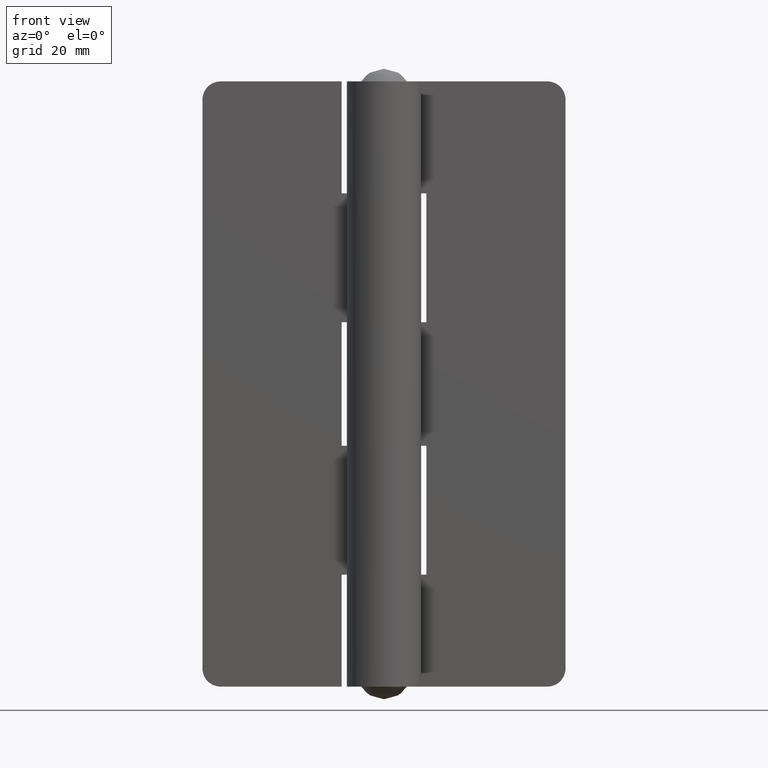
[diagram: clean part render]
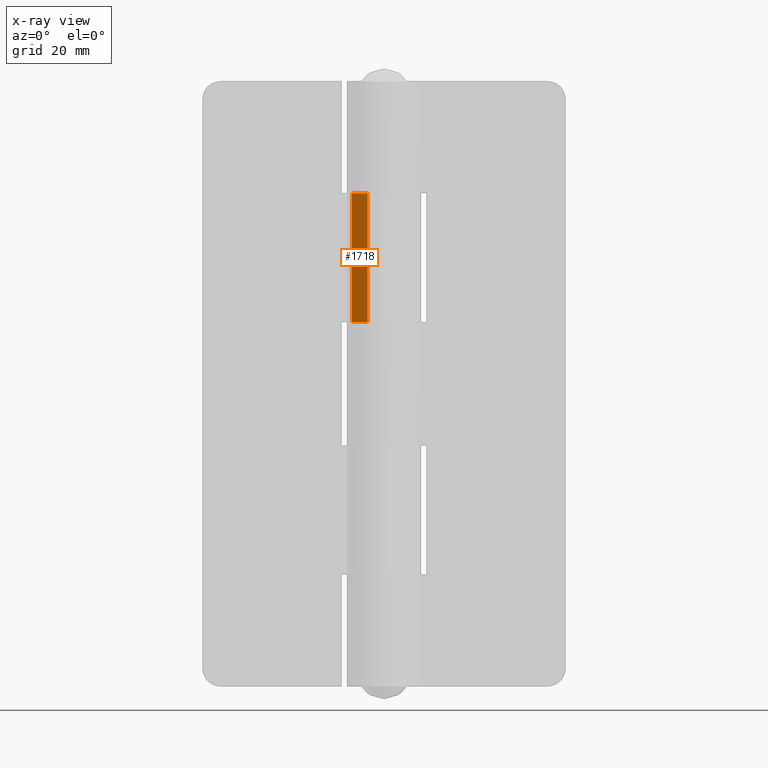
[diagram: x-ray — body ghosted, one internal face saturated and labeled with its STEP entity id]
A machine part, front view, then the same camera in x-ray: the body is ghosted and one INTERNAL B-rep face — a face not visible from any outside direction — is saturated and labeled: STEP entity #1718.
In plain terms, the highlighted face is a freeform B-spline surface patch.
Its self-contained STEP definition (entity closure, byte-faithful):
#1254=CARTESIAN_POINT('',(-5.311544031635240,3.100000000000000,60.200000000000003));
#1255=VERTEX_POINT('',#1254);
#1277=CARTESIAN_POINT('',(-2.720546943032690,1.587804878048785,60.200000000000003));
#1278=VERTEX_POINT('',#1277);
#1279=CARTESIAN_POINT('',(-2.720546943032690,1.587804878048785,60.200000000000003));
#1280=CARTESIAN_POINT('',(-5.311544031635240,3.100000000000000,60.200000000000003));
#1281=QUASI_UNIFORM_CURVE('',1,(#1279,#1280),.UNSPECIFIED.,.F.,.U.);
#1282=EDGE_CURVE('',#1278,#1255,#1281,.T.);
#1430=CARTESIAN_POINT('',(-5.311544031635240,3.100000000000000,81.500000000000000));
#1431=VERTEX_POINT('',#1430);
#1474=CARTESIAN_POINT('',(-2.720546943032690,1.587804878048785,81.500000000000000));
#1475=VERTEX_POINT('',#1474);
#1495=CARTESIAN_POINT('',(-2.720546943032690,1.587804878048785,81.500000000000000));
#1496=CARTESIAN_POINT('',(-5.311544031635240,3.100000000000000,81.500000000000000));
#1497=QUASI_UNIFORM_CURVE('',1,(#1495,#1496),.UNSPECIFIED.,.F.,.U.);
#1498=EDGE_CURVE('',#1475,#1431,#1497,.T.);
#1677=CARTESIAN_POINT('',(-2.720546943032690,1.587804878048785,81.500000000000000));
#1678=CARTESIAN_POINT('',(-2.720546943032690,1.587804878048785,60.200000000000003));
#1679=QUASI_UNIFORM_CURVE('',1,(#1677,#1678),.UNSPECIFIED.,.F.,.U.);
#1680=EDGE_CURVE('',#1475,#1278,#1679,.T.);
#1703=CARTESIAN_POINT('',(-2.591126677058139,1.512270754236274,59.136065841080161));
#1704=CARTESIAN_POINT('',(-5.440964204948518,3.175534069732195,59.136065841080161));
#1705=CARTESIAN_POINT('',(-2.591126677058139,1.512270754236274,82.563935491977716));
#1706=CARTESIAN_POINT('',(-5.440964204948518,3.175534069732195,82.563935491977716));
#1707=B_SPLINE_SURFACE_WITH_KNOTS('',1,1,((#1703,#1705),(#1704,#1706)),.UNSPECIFIED.,.F.,.F.,.U.,(2,2),(2,2),(0.0,3.299699803322543),(0.0,23.427869650897559),.UNSPECIFIED.);
#1708=ORIENTED_EDGE('',*,*,#1680,.T.);
#1709=ORIENTED_EDGE('',*,*,#1282,.T.);
#1710=CARTESIAN_POINT('',(-5.311544031635240,3.100000000000000,81.500000000000000));
#1711=CARTESIAN_POINT('',(-5.311544031635240,3.100000000000000,60.200000000000003));
#1712=QUASI_UNIFORM_CURVE('',1,(#1710,#1711),.UNSPECIFIED.,.F.,.U.);
#1713=EDGE_CURVE('',#1431,#1255,#1712,.T.);
#1714=ORIENTED_EDGE('',*,*,#1713,.F.);
#1715=ORIENTED_EDGE('',*,*,#1498,.F.);
#1716=EDGE_LOOP('',(#1708,#1709,#1714,#1715));
#1717=FACE_OUTER_BOUND('',#1716,.T.);
#1718=ADVANCED_FACE('',(#1717),#1707,.T.);